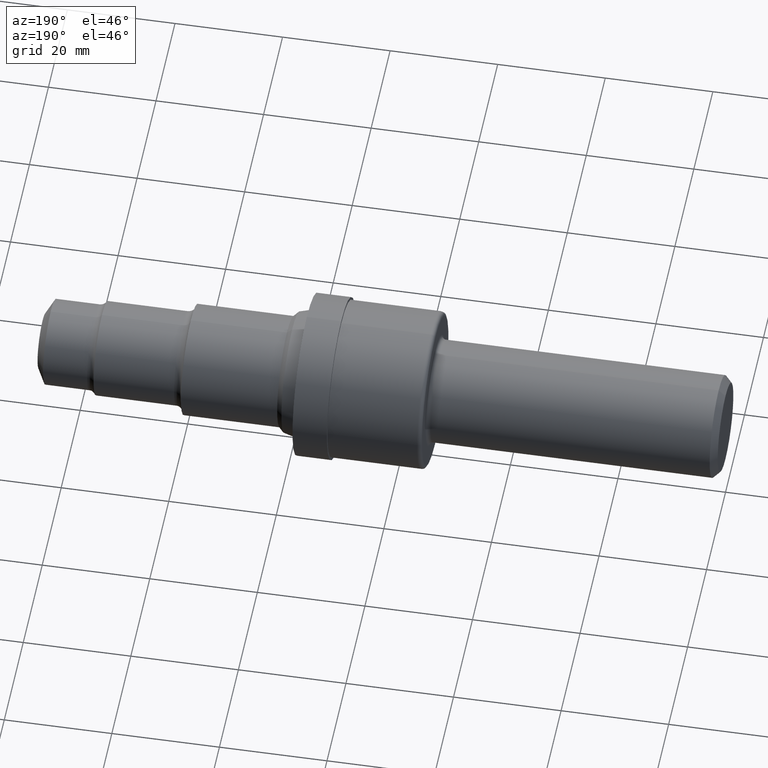
[diagram: clean part render]
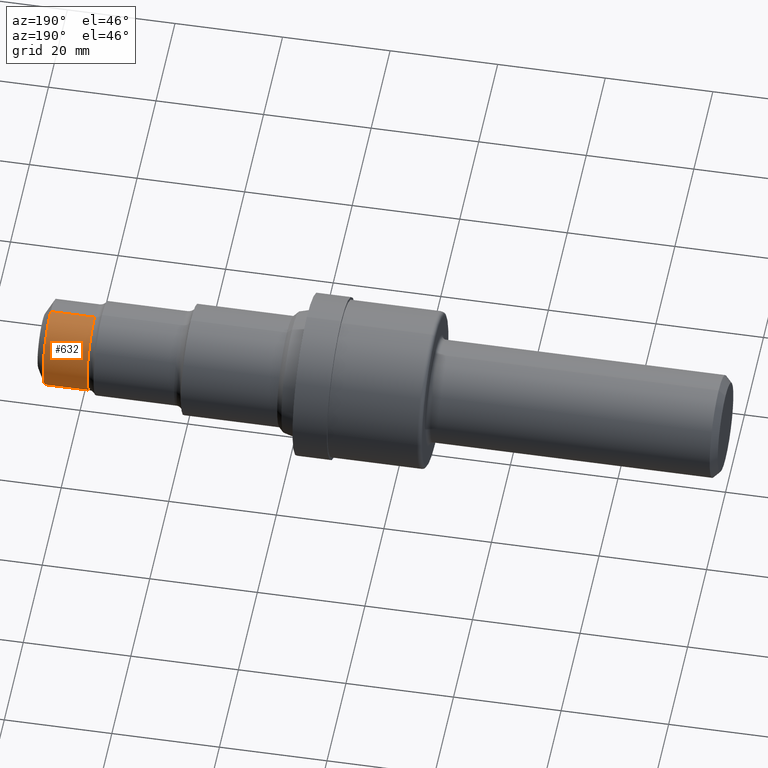
[diagram: same view with one face highlighted and labeled with its STEP entity id]
A machine part, auxiliary view. The second image highlights one B-rep face of the part: STEP entity #632.
In plain terms, the highlighted cylindrical surface (partial cylindrical patch) has radius 7.9477 mm, axis along (-1, -0, -0).
Its self-contained STEP definition (entity closure, byte-faithful):
#5 = AXIS2_PLACEMENT_3D ( 'NONE', #913, #435, #122 ) ;
#66 = CARTESIAN_POINT ( 'NONE',  ( 0.0000000000000000000, 3.831919834532067466E-17, -0.3128999999999999559 ) ) ;
#69 = VECTOR ( 'NONE', #133, 39.37007874015748143 ) ;
#97 = EDGE_CURVE ( 'NONE', #134, #207, #325, .T. ) ;
#122 = DIRECTION ( 'NONE',  ( 0.0000000000000000000, 0.0000000000000000000, 1.000000000000000000 ) ) ;
#133 = DIRECTION ( 'NONE',  ( -1.000000000000000000, -0.0000000000000000000, -0.0000000000000000000 ) ) ;
#134 = VERTEX_POINT ( 'NONE', #718 ) ;
#137 = VERTEX_POINT ( 'NONE', #592 ) ;
#153 = ORIENTED_EDGE ( 'NONE', *, *, #561, .T. ) ;
#185 = EDGE_CURVE ( 'NONE', #137, #712, #609, .T. ) ;
#207 = VERTEX_POINT ( 'NONE', #321 ) ;
#236 = CARTESIAN_POINT ( 'NONE',  ( 4.940000000000000391, 0.0000000000000000000, 0.0000000000000000000 ) ) ;
#242 = ORIENTED_EDGE ( 'NONE', *, *, #97, .F. ) ;
#307 = CARTESIAN_POINT ( 'NONE',  ( 0.0000000000000000000, 0.0000000000000000000, 0.3128999999999999559 ) ) ;
#321 = CARTESIAN_POINT ( 'NONE',  ( 4.618979162646340342, 0.0000000000000000000, 0.3128999999999999559 ) ) ;
#325 = LINE ( 'NONE', #307, #873 ) ;
#349 = DIRECTION ( 'NONE',  ( 0.0000000000000000000, 0.0000000000000000000, 1.000000000000000000 ) ) ;
#359 = ORIENTED_EDGE ( 'NONE', *, *, #185, .T. ) ;
#364 = DIRECTION ( 'NONE',  ( -1.000000000000000000, -0.0000000000000000000, -0.0000000000000000000 ) ) ;
#396 = EDGE_LOOP ( 'NONE', ( #153, #359, #529, #242 ) ) ;
#410 = AXIS2_PLACEMENT_3D ( 'NONE', #863, #506, #349 ) ;
#435 = DIRECTION ( 'NONE',  ( -1.000000000000000000, -0.0000000000000000000, -0.0000000000000000000 ) ) ;
#506 = DIRECTION ( 'NONE',  ( -1.000000000000000000, -0.0000000000000000000, -0.0000000000000000000 ) ) ;
#520 = DIRECTION ( 'NONE',  ( -1.000000000000000000, -0.0000000000000000000, -0.0000000000000000000 ) ) ;
#529 = ORIENTED_EDGE ( 'NONE', *, *, #575, .F. ) ;
#545 = CIRCLE ( 'NONE', #410, 0.3128999999999999559 ) ;
#561 = EDGE_CURVE ( 'NONE', #134, #137, #933, .T. ) ;
#566 = DIRECTION ( 'NONE',  ( 0.0000000000000000000, 0.0000000000000000000, 1.000000000000000000 ) ) ;
#575 = EDGE_CURVE ( 'NONE', #207, #712, #545, .T. ) ;
#592 = CARTESIAN_POINT ( 'NONE',  ( 4.940000000000000391, 3.831919834532068082E-17, -0.3129000000000000115 ) ) ;
#609 = LINE ( 'NONE', #66, #69 ) ;
#632 = ADVANCED_FACE ( 'NONE', ( #885 ), #679, .T. ) ;
#679 = CYLINDRICAL_SURFACE ( 'NONE', #5, 0.3128999999999999559 ) ;
#712 = VERTEX_POINT ( 'NONE', #725 ) ;
#718 = CARTESIAN_POINT ( 'NONE',  ( 4.940000000000000391, 0.0000000000000000000, 0.3129000000000000115 ) ) ;
#725 = CARTESIAN_POINT ( 'NONE',  ( 4.618979162646340342, 4.024801705397776093E-17, -0.3128999999999999559 ) ) ;
#763 = AXIS2_PLACEMENT_3D ( 'NONE', #236, #364, #566 ) ;
#863 = CARTESIAN_POINT ( 'NONE',  ( 4.618979162646340342, 0.0000000000000000000, 0.0000000000000000000 ) ) ;
#873 = VECTOR ( 'NONE', #520, 39.37007874015748143 ) ;
#885 = FACE_OUTER_BOUND ( 'NONE', #396, .T. ) ;
#913 = CARTESIAN_POINT ( 'NONE',  ( 0.0000000000000000000, 0.0000000000000000000, 0.0000000000000000000 ) ) ;
#933 = CIRCLE ( 'NONE', #763, 0.3129000000000000115 ) ;